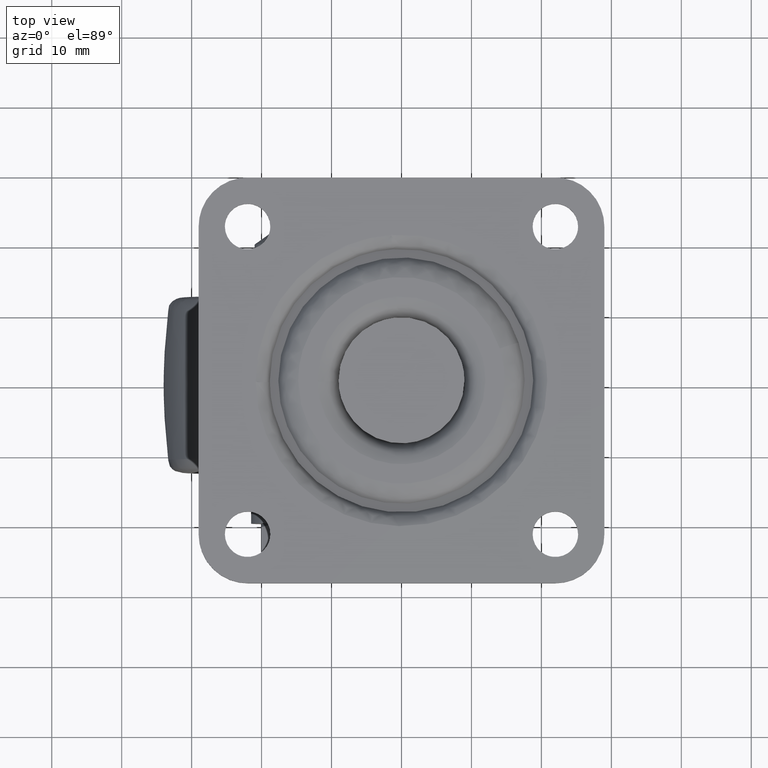
[diagram: clean part render]
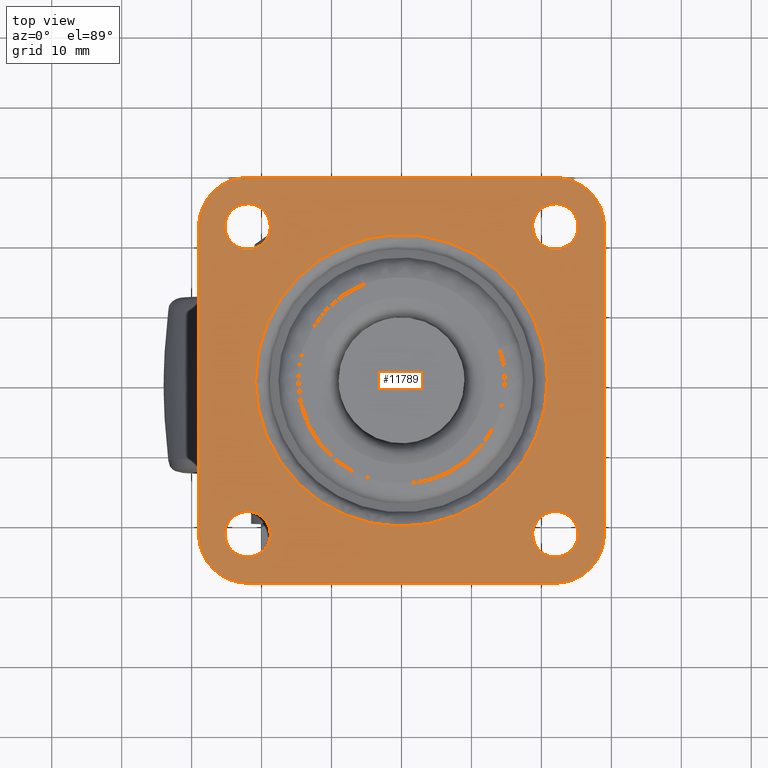
[diagram: same view with one face highlighted and labeled with its STEP entity id]
A machine part, top view. The second image highlights one B-rep face of the part: STEP entity #11789.
In plain terms, the highlighted face is a freeform B-spline surface patch.
Its self-contained STEP definition (entity closure, byte-faithful):
#9516=CARTESIAN_POINT('',(-22.383611262671579,18.772719039322499,-2.484500E-017));
#9517=VERTEX_POINT('',#9516);
#9518=CARTESIAN_POINT('',(-18.750000000000000,22.0,0.0));
#9519=VERTEX_POINT('',#9518);
#9520=CARTESIAN_POINT('',(-22.383611262671572,18.772719039322496,-2.484500E-017));
#9521=CARTESIAN_POINT('',(-22.192478388906206,18.750000000000000,0.0));
#9522=CARTESIAN_POINT('',(-22.0,18.750000000000000,0.0));
#9523=CARTESIAN_POINT('',(-18.750000000000007,18.750000000000007,0.0));
#9524=CARTESIAN_POINT('',(-18.750000000000000,22.0,0.0));
#9532=(BOUNDED_CURVE()B_SPLINE_CURVE(2,(#9520,#9521,#9522,#9523,#9524),.UNSPECIFIED.,.F.,.U.)B_SPLINE_CURVE_WITH_KNOTS((3,2,3),(0.229562473511758,0.250000000000000,0.500000000000000),.UNSPECIFIED.)CURVE()GEOMETRIC_REPRESENTATION_ITEM()RATIONAL_B_SPLINE_CURVE((0.956026754180268,0.976055948329094,1.0,0.707106781186547,1.0))REPRESENTATION_ITEM(''));
#9533=EDGE_CURVE('',#9517,#9519,#9532,.T.);
#9535=CARTESIAN_POINT('',(-21.801592246418750,25.243938094865381,-2.081668E-017));
#9536=VERTEX_POINT('',#9535);
#9537=CARTESIAN_POINT('',(-18.750000000000000,22.0,0.0));
#9538=CARTESIAN_POINT('',(-18.750000000000011,25.057294717267954,0.0));
#9539=CARTESIAN_POINT('',(-21.801592246418753,25.243938094865374,-2.081668E-017));
#9547=(BOUNDED_CURVE()B_SPLINE_CURVE(2,(#9537,#9538,#9539),.UNSPECIFIED.,.F.,.U.)B_SPLINE_CURVE_WITH_KNOTS((3,3),(0.500000000000000,0.739332962232079),.UNSPECIFIED.)CURVE()GEOMETRIC_REPRESENTATION_ITEM()RATIONAL_B_SPLINE_CURVE((1.0,0.719603993294751,0.976072041652008))REPRESENTATION_ITEM(''));
#9548=EDGE_CURVE('',#9519,#9536,#9547,.T.);
#9615=CARTESIAN_POINT('',(-25.250000000000000,22.0,0.0));
#9616=VERTEX_POINT('',#9615);
#9617=CARTESIAN_POINT('',(-25.250000000000000,22.0,0.0));
#9618=CARTESIAN_POINT('',(-25.249999999999996,19.113432790724914,0.0));
#9619=CARTESIAN_POINT('',(-22.383611262671575,18.772719039322496,-2.484500E-017));
#9627=(BOUNDED_CURVE()B_SPLINE_CURVE(2,(#9617,#9618,#9619),.UNSPECIFIED.,.F.,.U.)B_SPLINE_CURVE_WITH_KNOTS((3,3),(0.0,0.229562473511757),.UNSPECIFIED.)CURVE()GEOMETRIC_REPRESENTATION_ITEM()RATIONAL_B_SPLINE_CURVE((1.0,0.731050832857454,0.956026754180268))REPRESENTATION_ITEM(''));
#9628=EDGE_CURVE('',#9616,#9517,#9627,.T.);
#9662=CARTESIAN_POINT('',(-21.801592246418753,25.243938094865374,-2.081668E-017));
#9663=CARTESIAN_POINT('',(-21.900703519186358,25.250000000000000,0.0));
#9664=CARTESIAN_POINT('',(-22.0,25.250000000000000,0.0));
#9665=CARTESIAN_POINT('',(-25.249999999999996,25.249999999999996,0.0));
#9666=CARTESIAN_POINT('',(-25.250000000000000,22.0,0.0));
#9674=(BOUNDED_CURVE()B_SPLINE_CURVE(2,(#9662,#9663,#9664,#9665,#9666),.UNSPECIFIED.,.F.,.U.)B_SPLINE_CURVE_WITH_KNOTS((3,2,3),(0.739332962232079,0.750000000000000,1.0),.UNSPECIFIED.)CURVE()GEOMETRIC_REPRESENTATION_ITEM()RATIONAL_B_SPLINE_CURVE((0.976072041652006,0.987502787891795,1.0,0.707106781186547,1.0))REPRESENTATION_ITEM(''));
#9675=EDGE_CURVE('',#9536,#9616,#9674,.T.);
#9702=CARTESIAN_POINT('',(21.616388737328428,18.772719039322499,-2.484500E-017));
#9703=VERTEX_POINT('',#9702);
#9704=CARTESIAN_POINT('',(25.250000000000000,22.0,0.0));
#9705=VERTEX_POINT('',#9704);
#9706=CARTESIAN_POINT('',(21.616388737328428,18.772719039322492,-2.484500E-017));
#9707=CARTESIAN_POINT('',(21.807521611093790,18.750000000000004,0.0));
#9708=CARTESIAN_POINT('',(22.0,18.750000000000000,0.0));
#9709=CARTESIAN_POINT('',(25.249999999999996,18.750000000000007,0.0));
#9710=CARTESIAN_POINT('',(25.250000000000000,22.0,0.0));
#9718=(BOUNDED_CURVE()B_SPLINE_CURVE(2,(#9706,#9707,#9708,#9709,#9710),.UNSPECIFIED.,.F.,.U.)B_SPLINE_CURVE_WITH_KNOTS((3,2,3),(0.229562473511758,0.250000000000000,0.500000000000000),.UNSPECIFIED.)CURVE()GEOMETRIC_REPRESENTATION_ITEM()RATIONAL_B_SPLINE_CURVE((0.956026754180269,0.976055948329094,1.0,0.707106781186547,1.0))REPRESENTATION_ITEM(''));
#9719=EDGE_CURVE('',#9703,#9705,#9718,.T.);
#9721=CARTESIAN_POINT('',(22.198407753581250,25.243938094865381,-2.081668E-017));
#9722=VERTEX_POINT('',#9721);
#9723=CARTESIAN_POINT('',(25.250000000000000,22.0,0.0));
#9724=CARTESIAN_POINT('',(25.249999999999989,25.057294717267954,0.0));
#9725=CARTESIAN_POINT('',(22.198407753581250,25.243938094865374,-2.081668E-017));
#9733=(BOUNDED_CURVE()B_SPLINE_CURVE(2,(#9723,#9724,#9725),.UNSPECIFIED.,.F.,.U.)B_SPLINE_CURVE_WITH_KNOTS((3,3),(0.500000000000000,0.739332962232079),.UNSPECIFIED.)CURVE()GEOMETRIC_REPRESENTATION_ITEM()RATIONAL_B_SPLINE_CURVE((1.0,0.719603993294751,0.976072041652008))REPRESENTATION_ITEM(''));
#9734=EDGE_CURVE('',#9705,#9722,#9733,.T.);
#9801=CARTESIAN_POINT('',(18.750000000000000,22.0,0.0));
#9802=VERTEX_POINT('',#9801);
#9803=CARTESIAN_POINT('',(18.750000000000000,22.0,0.0));
#9804=CARTESIAN_POINT('',(18.749999999999993,19.113432790724897,0.0));
#9805=CARTESIAN_POINT('',(21.616388737328428,18.772719039322492,-2.484500E-017));
#9813=(BOUNDED_CURVE()B_SPLINE_CURVE(2,(#9803,#9804,#9805),.UNSPECIFIED.,.F.,.U.)B_SPLINE_CURVE_WITH_KNOTS((3,3),(0.0,0.229562473511758),.UNSPECIFIED.)CURVE()GEOMETRIC_REPRESENTATION_ITEM()RATIONAL_B_SPLINE_CURVE((1.0,0.731050832857453,0.956026754180269))REPRESENTATION_ITEM(''));
#9814=EDGE_CURVE('',#9802,#9703,#9813,.T.);
#9848=CARTESIAN_POINT('',(22.198407753581247,25.243938094865374,-2.081668E-017));
#9849=CARTESIAN_POINT('',(22.099296480813639,25.250000000000000,0.0));
#9850=CARTESIAN_POINT('',(22.0,25.250000000000000,0.0));
#9851=CARTESIAN_POINT('',(18.750000000000007,25.249999999999996,0.0));
#9852=CARTESIAN_POINT('',(18.750000000000000,22.0,0.0));
#9860=(BOUNDED_CURVE()B_SPLINE_CURVE(2,(#9848,#9849,#9850,#9851,#9852),.UNSPECIFIED.,.F.,.U.)B_SPLINE_CURVE_WITH_KNOTS((3,2,3),(0.739332962232079,0.750000000000000,1.0),.UNSPECIFIED.)CURVE()GEOMETRIC_REPRESENTATION_ITEM()RATIONAL_B_SPLINE_CURVE((0.976072041652006,0.987502787891795,1.0,0.707106781186547,1.0))REPRESENTATION_ITEM(''));
#9861=EDGE_CURVE('',#9722,#9802,#9860,.T.);
#9888=CARTESIAN_POINT('',(21.616388737328428,-25.227280960677501,-2.484500E-017));
#9889=VERTEX_POINT('',#9888);
#9890=CARTESIAN_POINT('',(25.250000000000000,-22.0,0.0));
#9891=VERTEX_POINT('',#9890);
#9892=CARTESIAN_POINT('',(21.616388737328425,-25.227280960677504,-2.484500E-017));
#9893=CARTESIAN_POINT('',(21.807521611093787,-25.249999999999996,0.0));
#9894=CARTESIAN_POINT('',(22.0,-25.250000000000000,0.0));
#9895=CARTESIAN_POINT('',(25.249999999999996,-25.249999999999996,0.0));
#9896=CARTESIAN_POINT('',(25.250000000000000,-22.0,0.0));
#9904=(BOUNDED_CURVE()B_SPLINE_CURVE(2,(#9892,#9893,#9894,#9895,#9896),.UNSPECIFIED.,.F.,.U.)B_SPLINE_CURVE_WITH_KNOTS((3,2,3),(0.229562473511758,0.250000000000000,0.500000000000000),.UNSPECIFIED.)CURVE()GEOMETRIC_REPRESENTATION_ITEM()RATIONAL_B_SPLINE_CURVE((0.956026754180269,0.976055948329094,1.0,0.707106781186547,1.0))REPRESENTATION_ITEM(''));
#9905=EDGE_CURVE('',#9889,#9891,#9904,.T.);
#9907=CARTESIAN_POINT('',(22.198407753581250,-18.756061905134619,-2.081668E-017));
#9908=VERTEX_POINT('',#9907);
#9909=CARTESIAN_POINT('',(25.250000000000000,-22.0,0.0));
#9910=CARTESIAN_POINT('',(25.249999999999989,-18.942705282732035,0.0));
#9911=CARTESIAN_POINT('',(22.198407753581250,-18.756061905134619,-2.081668E-017));
#9919=(BOUNDED_CURVE()B_SPLINE_CURVE(2,(#9909,#9910,#9911),.UNSPECIFIED.,.F.,.U.)B_SPLINE_CURVE_WITH_KNOTS((3,3),(0.500000000000000,0.739332962232079),.UNSPECIFIED.)CURVE()GEOMETRIC_REPRESENTATION_ITEM()RATIONAL_B_SPLINE_CURVE((1.0,0.719603993294751,0.976072041652008))REPRESENTATION_ITEM(''));
#9920=EDGE_CURVE('',#9891,#9908,#9919,.T.);
#9987=CARTESIAN_POINT('',(18.750000000000000,-22.0,0.0));
#9988=VERTEX_POINT('',#9987);
#9989=CARTESIAN_POINT('',(18.750000000000000,-22.0,0.0));
#9990=CARTESIAN_POINT('',(18.749999999999993,-24.886567209275096,0.0));
#9991=CARTESIAN_POINT('',(21.616388737328428,-25.227280960677504,-2.484500E-017));
#9999=(BOUNDED_CURVE()B_SPLINE_CURVE(2,(#9989,#9990,#9991),.UNSPECIFIED.,.F.,.U.)B_SPLINE_CURVE_WITH_KNOTS((3,3),(0.0,0.229562473511758),.UNSPECIFIED.)CURVE()GEOMETRIC_REPRESENTATION_ITEM()RATIONAL_B_SPLINE_CURVE((1.0,0.731050832857453,0.956026754180269))REPRESENTATION_ITEM(''));
#10000=EDGE_CURVE('',#9988,#9889,#9999,.T.);
#10034=CARTESIAN_POINT('',(22.198407753581247,-18.756061905134626,-2.081668E-017));
#10035=CARTESIAN_POINT('',(22.099296480813639,-18.750000000000000,0.0));
#10036=CARTESIAN_POINT('',(22.0,-18.750000000000000,0.0));
#10037=CARTESIAN_POINT('',(18.750000000000007,-18.750000000000007,0.0));
#10038=CARTESIAN_POINT('',(18.750000000000000,-22.0,0.0));
#10046=(BOUNDED_CURVE()B_SPLINE_CURVE(2,(#10034,#10035,#10036,#10037,#10038),.UNSPECIFIED.,.F.,.U.)B_SPLINE_CURVE_WITH_KNOTS((3,2,3),(0.739332962232079,0.750000000000000,1.0),.UNSPECIFIED.)CURVE()GEOMETRIC_REPRESENTATION_ITEM()RATIONAL_B_SPLINE_CURVE((0.976072041652006,0.987502787891795,1.0,0.707106781186547,1.0))REPRESENTATION_ITEM(''));
#10047=EDGE_CURVE('',#9908,#9988,#10046,.T.);
#10074=CARTESIAN_POINT('',(-22.383611262671572,-25.227280960677501,-2.484500E-017));
#10075=VERTEX_POINT('',#10074);
#10076=CARTESIAN_POINT('',(-18.750000000000000,-22.0,0.0));
#10077=VERTEX_POINT('',#10076);
#10078=CARTESIAN_POINT('',(-22.383611262671568,-25.227280960677508,-2.484500E-017));
#10079=CARTESIAN_POINT('',(-22.192478388906210,-25.249999999999993,0.0));
#10080=CARTESIAN_POINT('',(-22.0,-25.250000000000000,0.0));
#10081=CARTESIAN_POINT('',(-18.750000000000007,-25.249999999999996,0.0));
#10082=CARTESIAN_POINT('',(-18.750000000000000,-22.0,0.0));
#10090=(BOUNDED_CURVE()B_SPLINE_CURVE(2,(#10078,#10079,#10080,#10081,#10082),.UNSPECIFIED.,.F.,.U.)B_SPLINE_CURVE_WITH_KNOTS((3,2,3),(0.229562473511758,0.250000000000000,0.500000000000000),.UNSPECIFIED.)CURVE()GEOMETRIC_REPRESENTATION_ITEM()RATIONAL_B_SPLINE_CURVE((0.956026754180268,0.976055948329094,1.0,0.707106781186547,1.0))REPRESENTATION_ITEM(''));
#10091=EDGE_CURVE('',#10075,#10077,#10090,.T.);
#10093=CARTESIAN_POINT('',(-21.801592246418750,-18.756061905134619,-2.081668E-017));
#10094=VERTEX_POINT('',#10093);
#10095=CARTESIAN_POINT('',(-18.750000000000000,-22.0,0.0));
#10096=CARTESIAN_POINT('',(-18.750000000000011,-18.942705282732035,0.0));
#10097=CARTESIAN_POINT('',(-21.801592246418753,-18.756061905134619,-2.081668E-017));
#10105=(BOUNDED_CURVE()B_SPLINE_CURVE(2,(#10095,#10096,#10097),.UNSPECIFIED.,.F.,.U.)B_SPLINE_CURVE_WITH_KNOTS((3,3),(0.500000000000000,0.739332962232079),.UNSPECIFIED.)CURVE()GEOMETRIC_REPRESENTATION_ITEM()RATIONAL_B_SPLINE_CURVE((1.0,0.719603993294751,0.976072041652008))REPRESENTATION_ITEM(''));
#10106=EDGE_CURVE('',#10077,#10094,#10105,.T.);
#10173=CARTESIAN_POINT('',(-25.250000000000000,-22.0,0.0));
#10174=VERTEX_POINT('',#10173);
#10175=CARTESIAN_POINT('',(-25.250000000000000,-22.0,0.0));
#10176=CARTESIAN_POINT('',(-25.249999999999993,-24.886567209275093,0.0));
#10177=CARTESIAN_POINT('',(-22.383611262671572,-25.227280960677511,-2.484500E-017));
#10185=(BOUNDED_CURVE()B_SPLINE_CURVE(2,(#10175,#10176,#10177),.UNSPECIFIED.,.F.,.U.)B_SPLINE_CURVE_WITH_KNOTS((3,3),(0.0,0.229562473511758),.UNSPECIFIED.)CURVE()GEOMETRIC_REPRESENTATION_ITEM()RATIONAL_B_SPLINE_CURVE((1.0,0.731050832857453,0.956026754180268))REPRESENTATION_ITEM(''));
#10186=EDGE_CURVE('',#10174,#10075,#10185,.T.);
#10220=CARTESIAN_POINT('',(-21.801592246418753,-18.756061905134626,-2.081668E-017));
#10221=CARTESIAN_POINT('',(-21.900703519186358,-18.750000000000000,0.0));
#10222=CARTESIAN_POINT('',(-22.0,-18.750000000000000,0.0));
#10223=CARTESIAN_POINT('',(-25.249999999999996,-18.750000000000007,0.0));
#10224=CARTESIAN_POINT('',(-25.250000000000000,-22.0,0.0));
#10232=(BOUNDED_CURVE()B_SPLINE_CURVE(2,(#10220,#10221,#10222,#10223,#10224),.UNSPECIFIED.,.F.,.U.)B_SPLINE_CURVE_WITH_KNOTS((3,2,3),(0.739332962232079,0.750000000000000,1.0),.UNSPECIFIED.)CURVE()GEOMETRIC_REPRESENTATION_ITEM()RATIONAL_B_SPLINE_CURVE((0.976072041652006,0.987502787891795,1.0,0.707106781186547,1.0))REPRESENTATION_ITEM(''));
#10233=EDGE_CURVE('',#10094,#10174,#10232,.T.);
#11329=CARTESIAN_POINT('',(-20.843471156555388,-0.261940571652473,-2.199476E-016));
#11330=VERTEX_POINT('',#11329);
#11344=CARTESIAN_POINT('',(20.845117000000101,0.0,0.0));
#11345=VERTEX_POINT('',#11344);
#11346=CARTESIAN_POINT('',(20.845117000000101,0.0,0.0));
#11347=CARTESIAN_POINT('',(20.845117000000094,-20.845117000000094,0.0));
#11348=CARTESIAN_POINT('',(0.0,-20.845117000000101,0.0));
#11349=CARTESIAN_POINT('',(-20.584801717684954,-20.845117000000101,0.0));
#11350=CARTESIAN_POINT('',(-20.843471156555381,-0.261940571652473,-2.199476E-016));
#11358=(BOUNDED_CURVE()B_SPLINE_CURVE(2,(#11346,#11347,#11348,#11349,#11350),.UNSPECIFIED.,.F.,.U.)B_SPLINE_CURVE_WITH_KNOTS((3,2,3),(0.500000000000000,0.750000000000000,0.997784295920627),.UNSPECIFIED.)CURVE()GEOMETRIC_REPRESENTATION_ITEM()RATIONAL_B_SPLINE_CURVE((1.0,0.707106781186548,1.0,0.709702639985530,0.994854295641478))REPRESENTATION_ITEM(''));
#11359=EDGE_CURVE('',#11345,#11330,#11358,.T.);
#11361=CARTESIAN_POINT('',(-1.453597787889102,20.794373186123511,-2.571532E-016));
#11362=VERTEX_POINT('',#11361);
#11363=CARTESIAN_POINT('',(-1.453597787889101,20.794373186123511,-2.571532E-016));
#11364=CARTESIAN_POINT('',(-0.727684604801933,20.845117000000098,0.0));
#11365=CARTESIAN_POINT('',(0.0,20.845117000000101,0.0));
#11366=CARTESIAN_POINT('',(20.845117000000094,20.845117000000094,0.0));
#11367=CARTESIAN_POINT('',(20.845117000000101,0.0,0.0));
#11375=(BOUNDED_CURVE()B_SPLINE_CURVE(2,(#11363,#11364,#11365,#11366,#11367),.UNSPECIFIED.,.F.,.U.)B_SPLINE_CURVE_WITH_KNOTS((3,2,3),(0.237833686534690,0.250000000000000,0.500000000000000),.UNSPECIFIED.)CURVE()GEOMETRIC_REPRESENTATION_ITEM()RATIONAL_B_SPLINE_CURVE((0.972879876386125,0.985746277152207,1.0,0.707106781186548,1.0))REPRESENTATION_ITEM(''));
#11376=EDGE_CURVE('',#11362,#11345,#11375,.T.);
#11427=CARTESIAN_POINT('',(-20.845117000000101,0.0,0.0));
#11428=VERTEX_POINT('',#11427);
#11429=CARTESIAN_POINT('',(-20.845117000000101,0.0,0.0));
#11430=CARTESIAN_POINT('',(-20.845117000000098,19.438839688033489,0.0));
#11431=CARTESIAN_POINT('',(-1.453597787889102,20.794373186123504,-2.571532E-016));
#11439=(BOUNDED_CURVE()B_SPLINE_CURVE(2,(#11429,#11430,#11431),.UNSPECIFIED.,.F.,.U.)B_SPLINE_CURVE_WITH_KNOTS((3,3),(0.0,0.237833686534690),.UNSPECIFIED.)CURVE()GEOMETRIC_REPRESENTATION_ITEM()RATIONAL_B_SPLINE_CURVE((1.0,0.721360504034340,0.972879876386126))REPRESENTATION_ITEM(''));
#11440=EDGE_CURVE('',#11428,#11362,#11439,.T.);
#11442=CARTESIAN_POINT('',(-20.843471156555381,-0.261940571652473,-2.199476E-016));
#11443=CARTESIAN_POINT('',(-20.845117000000098,-0.130975456498600,0.0));
#11444=CARTESIAN_POINT('',(-20.845117000000101,0.0,0.0));
#11452=(BOUNDED_CURVE()B_SPLINE_CURVE(2,(#11442,#11443,#11444),.UNSPECIFIED.,.F.,.U.)B_SPLINE_CURVE_WITH_KNOTS((3,3),(0.997784295920626,1.0),.UNSPECIFIED.)CURVE()GEOMETRIC_REPRESENTATION_ITEM()RATIONAL_B_SPLINE_CURVE((0.994854295641476,0.997404141201017,1.0))REPRESENTATION_ITEM(''));
#11453=EDGE_CURVE('',#11330,#11428,#11452,.T.);
#11664=CARTESIAN_POINT('',(-31.897099887584751,31.897099887584741,0.0));
#11665=CARTESIAN_POINT('',(31.897101443265981,31.897099887584741,0.0));
#11666=CARTESIAN_POINT('',(-31.897099887584751,-31.897101443265971,0.0));
#11667=CARTESIAN_POINT('',(31.897101443265981,-31.897101443265971,0.0));
#11668=B_SPLINE_SURFACE_WITH_KNOTS('',1,1,((#11664,#11666),(#11665,#11667)),.UNSPECIFIED.,.F.,.F.,.U.,(2,2),(2,2),(0.0,63.794201330850733),(0.0,63.794201330850719),.UNSPECIFIED.);
#11669=CARTESIAN_POINT('',(22.0,29.0,0.0));
#11670=VERTEX_POINT('',#11669);
#11671=CARTESIAN_POINT('',(-22.0,29.0,0.0));
#11672=VERTEX_POINT('',#11671);
#11673=CARTESIAN_POINT('',(22.0,29.0,0.0));
#11674=CARTESIAN_POINT('',(-22.0,29.0,0.0));
#11675=QUASI_UNIFORM_CURVE('',1,(#11673,#11674),.UNSPECIFIED.,.F.,.U.);
#11676=EDGE_CURVE('',#11670,#11672,#11675,.T.);
#11677=ORIENTED_EDGE('',*,*,#11676,.T.);
#11678=CARTESIAN_POINT('',(-29.0,22.0,0.0));
#11679=VERTEX_POINT('',#11678);
#11680=CARTESIAN_POINT('',(-22.0,29.0,0.0));
#11681=CARTESIAN_POINT('',(-28.999999999999989,28.999999999999989,0.0));
#11682=CARTESIAN_POINT('',(-29.0,22.0,0.0));
#11690=(BOUNDED_CURVE()B_SPLINE_CURVE(2,(#11680,#11681,#11682),.UNSPECIFIED.,.F.,.U.)CURVE()GEOMETRIC_REPRESENTATION_ITEM()QUASI_UNIFORM_CURVE()RATIONAL_B_SPLINE_CURVE((1.0,0.707106781186547,1.0))REPRESENTATION_ITEM(''));
#11691=EDGE_CURVE('',#11672,#11679,#11690,.T.);
#11692=ORIENTED_EDGE('',*,*,#11691,.T.);
#11693=CARTESIAN_POINT('',(-29.0,-22.0,0.0));
#11694=VERTEX_POINT('',#11693);
#11695=CARTESIAN_POINT('',(-29.0,22.0,0.0));
#11696=CARTESIAN_POINT('',(-29.0,-22.0,0.0));
#11697=QUASI_UNIFORM_CURVE('',1,(#11695,#11696),.UNSPECIFIED.,.F.,.U.);
#11698=EDGE_CURVE('',#11679,#11694,#11697,.T.);
#11699=ORIENTED_EDGE('',*,*,#11698,.T.);
#11700=CARTESIAN_POINT('',(-22.0,-29.0,0.0));
#11701=VERTEX_POINT('',#11700);
#11702=CARTESIAN_POINT('',(-29.0,-22.0,0.0));
#11703=CARTESIAN_POINT('',(-28.999999999999989,-28.999999999999989,0.0));
#11704=CARTESIAN_POINT('',(-22.0,-29.0,0.0));
#11712=(BOUNDED_CURVE()B_SPLINE_CURVE(2,(#11702,#11703,#11704),.UNSPECIFIED.,.F.,.U.)CURVE()GEOMETRIC_REPRESENTATION_ITEM()QUASI_UNIFORM_CURVE()RATIONAL_B_SPLINE_CURVE((1.0,0.707106781186547,1.0))REPRESENTATION_ITEM(''));
#11713=EDGE_CURVE('',#11694,#11701,#11712,.T.);
#11714=ORIENTED_EDGE('',*,*,#11713,.T.);
#11715=CARTESIAN_POINT('',(22.0,-29.0,0.0));
#11716=VERTEX_POINT('',#11715);
#11717=CARTESIAN_POINT('',(-22.0,-29.0,0.0));
#11718=CARTESIAN_POINT('',(22.0,-29.0,0.0));
#11719=QUASI_UNIFORM_CURVE('',1,(#11717,#11718),.UNSPECIFIED.,.F.,.U.);
#11720=EDGE_CURVE('',#11701,#11716,#11719,.T.);
#11721=ORIENTED_EDGE('',*,*,#11720,.T.);
#11722=CARTESIAN_POINT('',(29.0,-22.0,0.0));
#11723=VERTEX_POINT('',#11722);
#11724=CARTESIAN_POINT('',(22.0,-29.0,0.0));
#11725=CARTESIAN_POINT('',(28.999999999999989,-28.999999999999989,0.0));
#11726=CARTESIAN_POINT('',(29.0,-22.0,0.0));
#11734=(BOUNDED_CURVE()B_SPLINE_CURVE(2,(#11724,#11725,#11726),.UNSPECIFIED.,.F.,.U.)CURVE()GEOMETRIC_REPRESENTATION_ITEM()QUASI_UNIFORM_CURVE()RATIONAL_B_SPLINE_CURVE((1.0,0.707106781186547,1.0))REPRESENTATION_ITEM(''));
#11735=EDGE_CURVE('',#11716,#11723,#11734,.T.);
#11736=ORIENTED_EDGE('',*,*,#11735,.T.);
#11737=CARTESIAN_POINT('',(29.0,22.0,0.0));
#11738=VERTEX_POINT('',#11737);
#11739=CARTESIAN_POINT('',(29.0,-22.0,0.0));
#11740=CARTESIAN_POINT('',(29.0,22.0,0.0));
#11741=QUASI_UNIFORM_CURVE('',1,(#11739,#11740),.UNSPECIFIED.,.F.,.U.);
#11742=EDGE_CURVE('',#11723,#11738,#11741,.T.);
#11743=ORIENTED_EDGE('',*,*,#11742,.T.);
#11744=CARTESIAN_POINT('',(29.0,22.0,0.0));
#11745=CARTESIAN_POINT('',(28.999999999999989,28.999999999999989,0.0));
#11746=CARTESIAN_POINT('',(22.0,29.0,0.0));
#11754=(BOUNDED_CURVE()B_SPLINE_CURVE(2,(#11744,#11745,#11746),.UNSPECIFIED.,.F.,.U.)CURVE()GEOMETRIC_REPRESENTATION_ITEM()QUASI_UNIFORM_CURVE()RATIONAL_B_SPLINE_CURVE((1.0,0.707106781186547,1.0))REPRESENTATION_ITEM(''));
#11755=EDGE_CURVE('',#11738,#11670,#11754,.T.);
#11756=ORIENTED_EDGE('',*,*,#11755,.T.);
#11757=EDGE_LOOP('',(#11677,#11692,#11699,#11714,#11721,#11736,#11743,#11756));
#11758=FACE_OUTER_BOUND('',#11757,.T.);
#11759=ORIENTED_EDGE('',*,*,#11359,.T.);
#11760=ORIENTED_EDGE('',*,*,#11453,.T.);
#11761=ORIENTED_EDGE('',*,*,#11440,.T.);
#11762=ORIENTED_EDGE('',*,*,#11376,.T.);
#11763=EDGE_LOOP('',(#11759,#11760,#11761,#11762));
#11764=FACE_BOUND('',#11763,.T.);
#11765=ORIENTED_EDGE('',*,*,#10106,.F.);
#11766=ORIENTED_EDGE('',*,*,#10091,.F.);
#11767=ORIENTED_EDGE('',*,*,#10186,.F.);
#11768=ORIENTED_EDGE('',*,*,#10233,.F.);
#11769=EDGE_LOOP('',(#11765,#11766,#11767,#11768));
#11770=FACE_BOUND('',#11769,.T.);
#11771=ORIENTED_EDGE('',*,*,#9920,.F.);
#11772=ORIENTED_EDGE('',*,*,#9905,.F.);
#11773=ORIENTED_EDGE('',*,*,#10000,.F.);
#11774=ORIENTED_EDGE('',*,*,#10047,.F.);
#11775=EDGE_LOOP('',(#11771,#11772,#11773,#11774));
#11776=FACE_BOUND('',#11775,.T.);
#11777=ORIENTED_EDGE('',*,*,#9734,.F.);
#11778=ORIENTED_EDGE('',*,*,#9719,.F.);
#11779=ORIENTED_EDGE('',*,*,#9814,.F.);
#11780=ORIENTED_EDGE('',*,*,#9861,.F.);
#11781=EDGE_LOOP('',(#11777,#11778,#11779,#11780));
#11782=FACE_BOUND('',#11781,.T.);
#11783=ORIENTED_EDGE('',*,*,#9548,.F.);
#11784=ORIENTED_EDGE('',*,*,#9533,.F.);
#11785=ORIENTED_EDGE('',*,*,#9628,.F.);
#11786=ORIENTED_EDGE('',*,*,#9675,.F.);
#11787=EDGE_LOOP('',(#11783,#11784,#11785,#11786));
#11788=FACE_BOUND('',#11787,.T.);
#11789=ADVANCED_FACE('',(#11758,#11764,#11770,#11776,#11782,#11788),#11668,.F.);